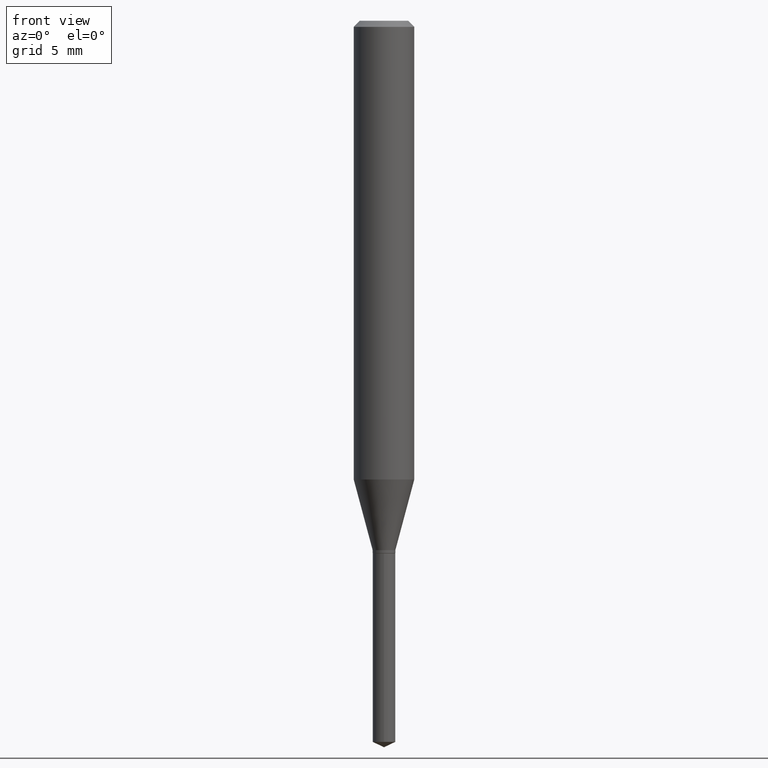
[diagram: clean part render]
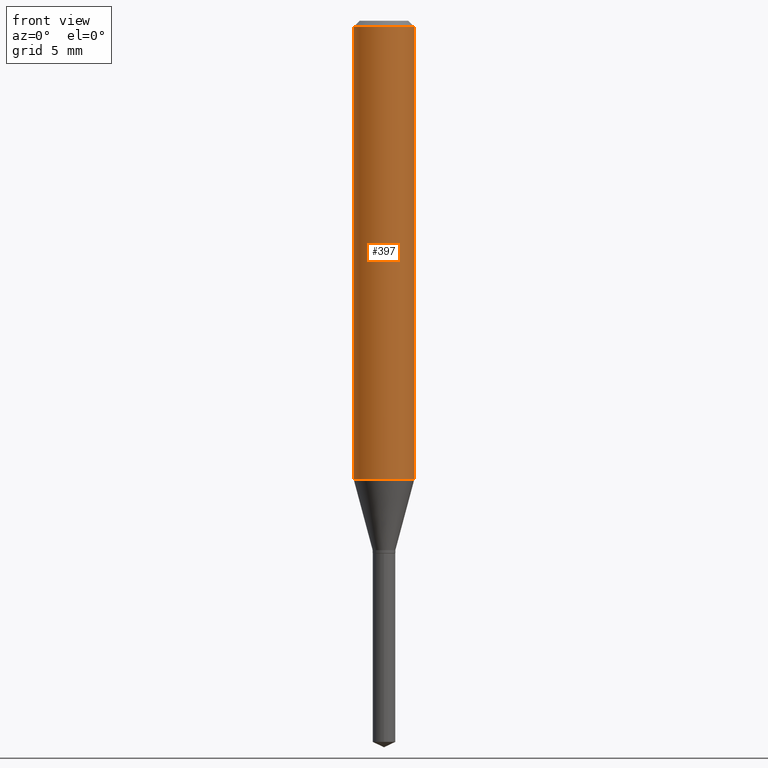
[diagram: same view with one face highlighted and labeled with its STEP entity id]
A machine part, front view. The second image highlights one B-rep face of the part: STEP entity #397.
In plain terms, the highlighted cylindrical surface (edge-blend (fillet) strip) has radius 1.5875 mm, axis along (-0, 0, 1).
Its self-contained STEP definition (entity closure, byte-faithful):
#5 = DIRECTION ( 'NONE',  ( 1.000000000000000000, -6.982962677686265922E-15, 0.000000000000000000 ) ) ;
#17 = AXIS2_PLACEMENT_3D ( 'NONE', #354, #282, #168 ) ;
#35 = CARTESIAN_POINT ( 'NONE',  ( 0.06250000000000012490, -3.743787707164031297E-15, -0.9472634159644353069 ) ) ;
#63 = VERTEX_POINT ( 'NONE', #35 ) ;
#70 = VECTOR ( 'NONE', #130, 39.37007874015748143 ) ;
#77 = CARTESIAN_POINT ( 'NONE',  ( 3.056836007731442729E-31, -4.364351673553962300E-17, -0.01250000000000008916 ) ) ;
#81 = CARTESIAN_POINT ( 'NONE',  ( -0.06250000000000012490, -2.863263329958574645E-15, -0.9472634159644353069 ) ) ;
#87 = LINE ( 'NONE', #237, #370 ) ;
#116 = EDGE_CURVE ( 'NONE', #220, #475, #461, .T. ) ;
#129 = LINE ( 'NONE', #401, #70 ) ;
#130 = DIRECTION ( 'NONE',  ( -2.445468806185136877E-29, 3.491481338843145188E-15, 1.000000000000000000 ) ) ;
#168 = DIRECTION ( 'NONE',  ( 1.000000000000000000, -6.982962677686264344E-15, 0.000000000000000000 ) ) ;
#183 = VERTEX_POINT ( 'NONE', #81 ) ;
#189 = ORIENTED_EDGE ( 'NONE', *, *, #116, .F. ) ;
#206 = CARTESIAN_POINT ( 'NONE',  ( -0.06250000000000001388, -1.231408818422025401E-15, -0.01250000000000008916 ) ) ;
#210 = ORIENTED_EDGE ( 'NONE', *, *, #288, .T. ) ;
#220 = VERTEX_POINT ( 'NONE', #206 ) ;
#229 = CIRCLE ( 'NONE', #17, 0.06250000000000012490 ) ;
#232 = DIRECTION ( 'NONE',  ( -2.445468806185136597E-29, 3.491481338843145583E-15, 1.000000000000000000 ) ) ;
#236 = CARTESIAN_POINT ( 'NONE',  ( 0.06250000000000001388, -4.800786840909313294E-16, -0.01250000000000008916 ) ) ;
#237 = CARTESIAN_POINT ( 'NONE',  ( 0.06250000000000006939, -4.364351673553921624E-16, 3.047610484872463374E-30 ) ) ;
#240 = DIRECTION ( 'NONE',  ( 1.000000000000000000, -6.982962677686266711E-15, 4.876176775795935793E-29 ) ) ;
#241 = FACE_OUTER_BOUND ( 'NONE', #369, .T. ) ;
#274 = CYLINDRICAL_SURFACE ( 'NONE', #444, 0.06250000000000006939 ) ;
#282 = DIRECTION ( 'NONE',  ( -2.445468806185136597E-29, 3.491481338843145583E-15, 1.000000000000000000 ) ) ;
#288 = EDGE_CURVE ( 'NONE', #183, #63, #229, .T. ) ;
#302 = CARTESIAN_POINT ( 'NONE',  ( 0.000000000000000000, 0.000000000000000000, 0.000000000000000000 ) ) ;
#332 = EDGE_CURVE ( 'NONE', #63, #475, #87, .T. ) ;
#343 = DIRECTION ( 'NONE',  ( -2.445468806185136597E-29, 3.491481338843145583E-15, 1.000000000000000000 ) ) ;
#354 = CARTESIAN_POINT ( 'NONE',  ( 2.316503134981402038E-29, -3.307352539808638444E-15, -0.9472634159644353069 ) ) ;
#364 = EDGE_CURVE ( 'NONE', #183, #220, #129, .T. ) ;
#369 = EDGE_LOOP ( 'NONE', ( #374, #210, #435, #189 ) ) ;
#370 = VECTOR ( 'NONE', #428, 39.37007874015748143 ) ;
#374 = ORIENTED_EDGE ( 'NONE', *, *, #364, .F. ) ;
#397 = ADVANCED_FACE ( 'NONE', ( #241 ), #274, .T. ) ;
#398 = AXIS2_PLACEMENT_3D ( 'NONE', #77, #343, #5 ) ;
#401 = CARTESIAN_POINT ( 'NONE',  ( -0.06250000000000006939, 4.440892098500631092E-16, -3.074334431409319267E-30 ) ) ;
#428 = DIRECTION ( 'NONE',  ( -2.445468806185136877E-29, 3.491481338843145188E-15, 1.000000000000000000 ) ) ;
#435 = ORIENTED_EDGE ( 'NONE', *, *, #332, .T. ) ;
#444 = AXIS2_PLACEMENT_3D ( 'NONE', #302, #232, #240 ) ;
#461 = CIRCLE ( 'NONE', #398, 0.06250000000000001388 ) ;
#475 = VERTEX_POINT ( 'NONE', #236 ) ;